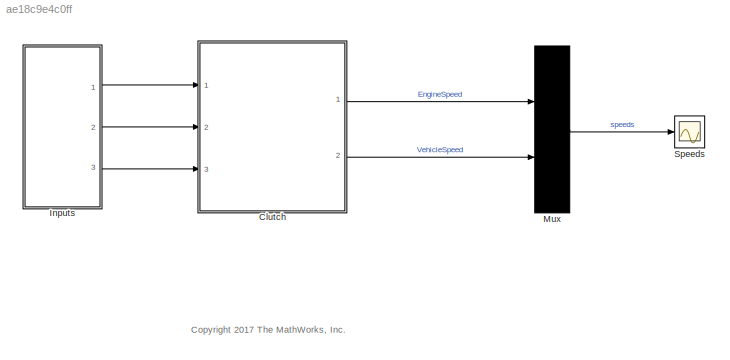
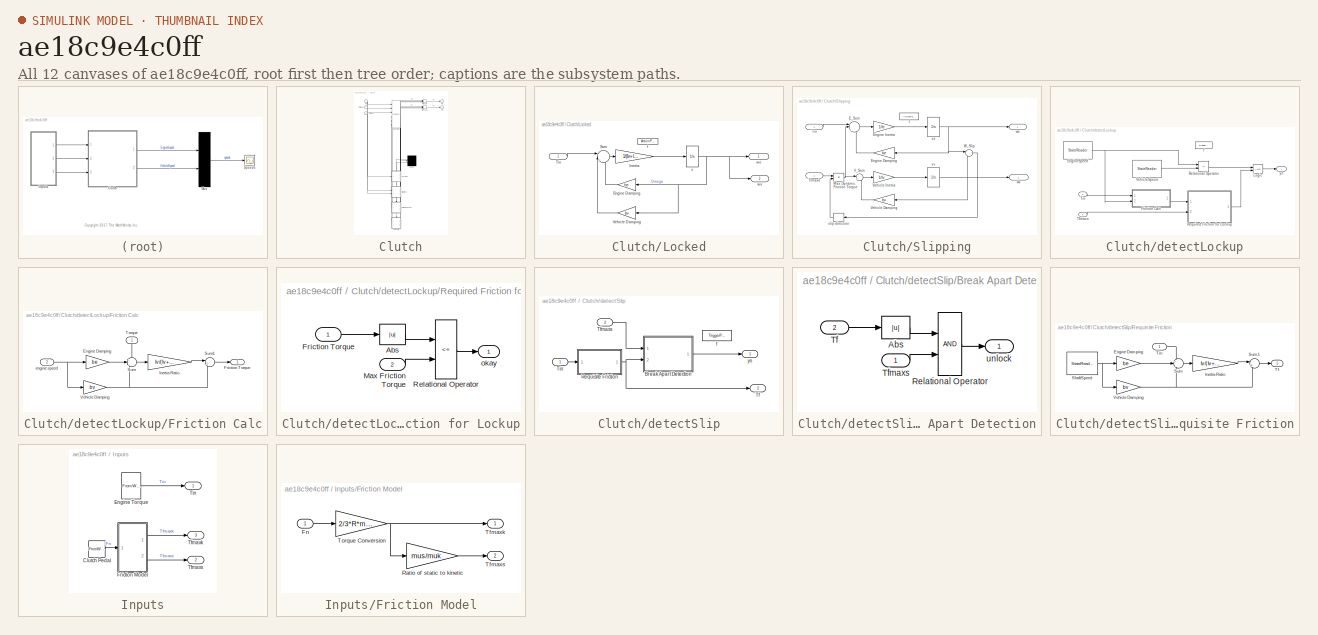
[diagram: thumbnail index - all 12 canvases of the model, root first then tree order]
MODEL slx_ae18c9e4c0ff
KIND model
CONFIG AbsTol = 1e-7
CONFIG EnableMultiTasking = off
CONFIG FixedStep = auto
CONFIG MaxStep = auto
CONFIG MinStep = auto
CONFIG RelTol = 1e-6
CONFIG SampleTimeConstraint = Unconstrained
CONFIG Solver = ode45
CONFIG SolverName = ode45
CONFIG StartTime = 0.0
CONFIG StopTime = 10
WORKSPACE source: MATLAB code (in-file)
WORKSPACE code: load sldemo_clutchparam;
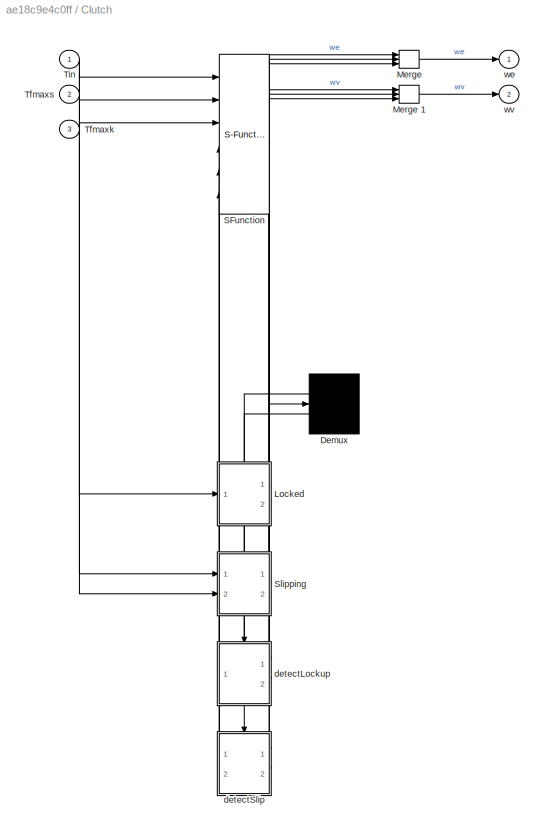
BLOCK [SubSystem] Clutch
  ErrorFcn = Stateflow.Translate.translate
  PermitHierarchicalResolution = ExplicitOnly
  Ports = [3, 2]
  RequestExecContextInheritance = off
  SFBlockType = Chart
  TreatAsAtomicUnit = on
  Variant = off
BLOCK [Demux] Clutch/ Demux 
  Outputs = 2
  Ports = [1, 2]
BLOCK [Merge] Clutch/ Merge 
  Inputs = 3
  Ports = [3, 1]
BLOCK [Merge] Clutch/ Merge 1
  Inputs = 3
  Ports = [3, 1]
BLOCK [S-Function] Clutch/ SFunction 
  EnableBusSupport = on
  FunctionName = sf_sfun
  PortCounts = [6 7]
  Ports = [6, 7]
  SFcnIsStateOwnerBlock = off
  SFunctionDeploymentMode = off
  Tag = Stateflow S-Function sf_clutch 2
BLOCK [SubSystem] Clutch/Locked
  Ports = [1, 2, 0, 0, 0, 0, 0, 1]
  PreDeleteFcn = Stateflow.SLINSF.SimulinkMan.removePreDeleteFcn
  RequestExecContextInheritance = off
  UndoDeleteFcn = Stateflow.SLINSF.SimulinkMan.restorePreDeleteFcn
  Variant = off
BLOCK [Gain] Clutch/Locked/Engine Damping
  Gain = be
BLOCK [Gain] Clutch/Locked/Inertia
  Gain = 1/(Iv+Ie)
BLOCK [Sum] Clutch/Locked/Sum
  IconShape = round
  Inputs = ||+--
  Ports = [3, 1]
BLOCK [Inport] Clutch/Locked/Tin
  IconDisplay = Port number
BLOCK [Gain] Clutch/Locked/Vehicle Damping
  Gain = bv
BLOCK [ActionPort] Clutch/Locked/f
  CopyFcn = Stateflow.SLINSF.SimulinkMan.removeBlockPreDeleteFcn
  PreDeleteFcn = Stateflow.SLINSF.SimulinkMan.unsafePredeleteFcn
BLOCK [Outport] Clutch/Locked/we
  IconDisplay = Port number
BLOCK [Outport] Clutch/Locked/wv
  IconDisplay = Port number
  Port = 2
BLOCK [Integrator] Clutch/Locked/x
  ContinuousStateAttributes = 'w'
  Ports = [1, 1]
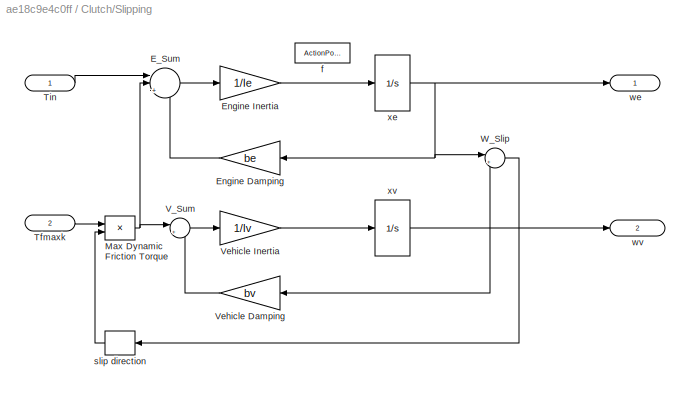
BLOCK [SubSystem] Clutch/Slipping
  Ports = [2, 2, 0, 0, 0, 0, 0, 1]
  PreDeleteFcn = Stateflow.SLINSF.SimulinkMan.removePreDeleteFcn
  RequestExecContextInheritance = off
  UndoDeleteFcn = Stateflow.SLINSF.SimulinkMan.restorePreDeleteFcn
  Variant = off
BLOCK [Sum] Clutch/Slipping/E_Sum
  IconShape = round
  Inputs = ||+--
  Ports = [3, 1]
BLOCK [Gain] Clutch/Slipping/Engine Damping
  Gain = be
BLOCK [Gain] Clutch/Slipping/Engine Inertia
  Gain = 1/Ie
BLOCK [Product] Clutch/Slipping/Max Dynamic Friction Torque
  Ports = [2, 1]
BLOCK [Inport] Clutch/Slipping/Tfmaxk
  IconDisplay = Port number
  Port = 2
BLOCK [Inport] Clutch/Slipping/Tin
  IconDisplay = Port number
BLOCK [Sum] Clutch/Slipping/V_Sum
  IconShape = round
  Inputs = |+-
  Ports = [2, 1]
BLOCK [Gain] Clutch/Slipping/Vehicle Damping
  Gain = bv
BLOCK [Gain] Clutch/Slipping/Vehicle Inertia
  Gain = 1/Iv
BLOCK [Sum] Clutch/Slipping/W_Slip
  IconShape = round
  Inputs = |+-
  Ports = [2, 1]
BLOCK [ActionPort] Clutch/Slipping/f
  CopyFcn = Stateflow.SLINSF.SimulinkMan.removeBlockPreDeleteFcn
  PreDeleteFcn = Stateflow.SLINSF.SimulinkMan.unsafePredeleteFcn
BLOCK [Signum] Clutch/Slipping/slip direction
BLOCK [Outport] Clutch/Slipping/we
  IconDisplay = Port number
BLOCK [Outport] Clutch/Slipping/wv
  IconDisplay = Port number
  Port = 2
BLOCK [Integrator] Clutch/Slipping/xe
  ContinuousStateAttributes = 'we'
  Ports = [1, 1]
BLOCK [Integrator] Clutch/Slipping/xv
  ContinuousStateAttributes = 'wv'
  Ports = [1, 1]
BLOCK [Inport] Clutch/Tfmaxk
  IconDisplay = Port number
  Port = 3
BLOCK [Inport] Clutch/Tfmaxs
  IconDisplay = Port number
  Port = 2
BLOCK [Inport] Clutch/Tin
  IconDisplay = Port number
BLOCK [SubSystem] Clutch/detectLockup
  Ports = [2, 1, 0, 1]
  PreDeleteFcn = Stateflow.SLINSF.SimulinkMan.removePreDeleteFcn
  RequestExecContextInheritance = off
  UndoDeleteFcn = Stateflow.SLINSF.SimulinkMan.restorePreDeleteFcn
  Variant = off
BLOCK [StateReader] Clutch/detectLockup/EngineSpeed
  StateOwnerBlock = ../../Slipping/xe
BLOCK [SubSystem] Clutch/detectLockup/Friction Calc
  Ports = [2, 1]
  RequestExecContextInheritance = off
  Variant = off
BLOCK [Gain] Clutch/detectLockup/Friction Calc/Engine Damping
  Gain = be
BLOCK [Outport] Clutch/detectLockup/Friction Calc/Friction Torque
  IconDisplay = Port number
  InitialOutput = 0
BLOCK [Gain] Clutch/detectLockup/Friction Calc/Inertia Ratio
  Gain = Iv/(Iv+Ie)
BLOCK [Sum] Clutch/detectLockup/Friction Calc/Sum
  IconShape = round
  Inputs = +--
  Ports = [3, 1]
BLOCK [Sum] Clutch/detectLockup/Friction Calc/Sum1
  IconShape = round
  Inputs = |++
  Ports = [2, 1]
BLOCK [Inport] Clutch/detectLockup/Friction Calc/Torque
  IconDisplay = Port number
BLOCK [Gain] Clutch/detectLockup/Friction Calc/Vehicle Damping
  Gain = bv
BLOCK [Inport] Clutch/detectLockup/Friction Calc/engine speed
  IconDisplay = Port number
  Port = 2
BLOCK [Logic] Clutch/detectLockup/Logic
  AttributesFormatString = (%<Operator>)
  IconShape = distinctive
  OutDataTypeStr = boolean
  Ports = [2, 1]
BLOCK [RelationalOperator] Clutch/detectLockup/Relational Operator
  InputSameDT = off
  Operator = <=
  OutDataTypeStr = boolean
  Ports = [2, 1]
BLOCK [SubSystem] Clutch/detectLockup/Required Friction for Lockup
  Ports = [2, 1]
  RequestExecContextInheritance = off
  Variant = off
BLOCK [Abs] Clutch/detectLockup/Required Friction for Lockup/Abs
BLOCK [Inport] Clutch/detectLockup/Required Friction for Lockup/Friction Torque
  IconDisplay = Port number
BLOCK [Inport] Clutch/detectLockup/Required Friction for Lockup/Max Friction Torque
  IconDisplay = Port number
  Port = 2
BLOCK [RelationalOperator] Clutch/detectLockup/Required Friction for Lockup/Relational Operator
  Operator = <=
  OutDataTypeStr = boolean
  Ports = [2, 1]
BLOCK [Outport] Clutch/detectLockup/Required Friction for Lockup/okay
  IconDisplay = Port number
  InitialOutput = 0
BLOCK [Inport] Clutch/detectLockup/Tfmaxs
  IconDisplay = Port number
  Port = 2
BLOCK [Inport] Clutch/detectLockup/Tin
  IconDisplay = Port number
BLOCK [StateReader] Clutch/detectLockup/VehicleSpeed
  StateOwnerBlock = ../../Slipping/xv
BLOCK [TriggerPort] Clutch/detectLockup/f
  CopyFcn = Stateflow.SLINSF.SimulinkMan.removeBlockPreDeleteFcn
  Ports = []
  PreDeleteFcn = Stateflow.SLINSF.SimulinkMan.unsafePredeleteFcn
  StatesWhenEnabling = held
  TriggerType = function-call
  VariantControl = Variant
BLOCK [Outport] Clutch/detectLockup/yn
  IconDisplay = Port number
BLOCK [SubSystem] Clutch/detectSlip
  Ports = [2, 2, 0, 1]
  PreDeleteFcn = Stateflow.SLINSF.SimulinkMan.removePreDeleteFcn
  RequestExecContextInheritance = off
  UndoDeleteFcn = Stateflow.SLINSF.SimulinkMan.restorePreDeleteFcn
  Variant = off
BLOCK [SubSystem] Clutch/detectSlip/Break Apart Detection
  Ports = [2, 1]
  RequestExecContextInheritance = off
  Variant = off
BLOCK [Abs] Clutch/detectSlip/Break Apart Detection/Abs
BLOCK [RelationalOperator] Clutch/detectSlip/Break Apart Detection/Relational Operator
  OutDataTypeStr = boolean
  Ports = [2, 1]
BLOCK [Inport] Clutch/detectSlip/Break Apart Detection/Tf
  IconDisplay = Port number
  Port = 2
BLOCK [Inport] Clutch/detectSlip/Break Apart Detection/Tfmaxs
  IconDisplay = Port number
BLOCK [Outport] Clutch/detectSlip/Break Apart Detection/unlock
  IconDisplay = Port number
  InitialOutput = 0
BLOCK [SubSystem] Clutch/detectSlip/Requisite Friction
  Ports = [1, 1]
  RequestExecContextInheritance = off
  Variant = off
BLOCK [Gain] Clutch/detectSlip/Requisite Friction/Engine Damping
  Gain = be
BLOCK [Gain] Clutch/detectSlip/Requisite Friction/Inertia Ratio
  Gain = Iv/(Iv+Ie)
BLOCK [StateReader] Clutch/detectSlip/Requisite Friction/ShaftSpeed
  StateOwnerBlock = ../../../Locked/x
BLOCK [Sum] Clutch/detectSlip/Requisite Friction/Sum
  IconShape = round
  Inputs = +--
  Ports = [3, 1]
BLOCK [Sum] Clutch/detectSlip/Requisite Friction/Sum1
  IconShape = round
  Inputs = |++
  Ports = [2, 1]
BLOCK [Outport] Clutch/detectSlip/Requisite Friction/Tf
  IconDisplay = Port number
  InitialOutput = 0
BLOCK [Inport] Clutch/detectSlip/Requisite Friction/Tin
  IconDisplay = Port number
BLOCK [Gain] Clutch/detectSlip/Requisite Friction/Vehicle Damping
  Gain = bv
BLOCK [Outport] Clutch/detectSlip/Tf
  IconDisplay = Port number
  Port = 2
BLOCK [Inport] Clutch/detectSlip/Tfmaxs
  IconDisplay = Port number
  Port = 2
BLOCK [Inport] Clutch/detectSlip/Tin
  IconDisplay = Port number
BLOCK [TriggerPort] Clutch/detectSlip/f
  CopyFcn = Stateflow.SLINSF.SimulinkMan.removeBlockPreDeleteFcn
  Ports = []
  PreDeleteFcn = Stateflow.SLINSF.SimulinkMan.unsafePredeleteFcn
  StatesWhenEnabling = held
  TriggerType = function-call
  VariantControl = Variant
BLOCK [Outport] Clutch/detectSlip/yn
  IconDisplay = Port number
BLOCK [Outport] Clutch/we
  IconDisplay = Port number
BLOCK [Outport] Clutch/wv
  IconDisplay = Port number
  Port = 2
BLOCK [SubSystem] Inputs
  Ports = [0, 3]
  RequestExecContextInheritance = off
  Variant = off
BLOCK [FromWorkspace] Inputs/Clutch Pedal
  SampleTime = 0
  VariableName = Fn
BLOCK [FromWorkspace] Inputs/Engine Torque
  SampleTime = 0
  VariableName = Tin
BLOCK [SubSystem] Inputs/Friction Model
  Ports = [1, 2]
  RequestExecContextInheritance = off
  Variant = off
BLOCK [Inport] Inputs/Friction Model/Fn
  IconDisplay = Port number
BLOCK [Gain] Inputs/Friction Model/Ratio of static to kinetic
  Gain = mus/muk
BLOCK [Outport] Inputs/Friction Model/Tfmaxk
  IconDisplay = Port number
  InitialOutput = 0
BLOCK [Outport] Inputs/Friction Model/Tfmaxs
  IconDisplay = Port number
  InitialOutput = 0
  Port = 2
BLOCK [Gain] Inputs/Friction Model/Torque Conversion
  Gain = 2/3*R*muk
BLOCK [Outport] Inputs/Tfmaxk
  IconDisplay = Port number
  Port = 3
BLOCK [Outport] Inputs/Tfmaxs
  IconDisplay = Port number
  Port = 2
BLOCK [Outport] Inputs/Tin
  IconDisplay = Port number
BLOCK [Mux] Mux
  Inputs = 2
  Ports = [2, 1]
BLOCK [Scope] Speeds
  NumInputPorts = 1
  Ports = [1]
  ScopeSpecificationString = Simulink.scopes.TimeScopeBlockCfg('CurrentConfiguration', extmgr.ConfigurationSet(extmgr.Configuration('Core','General UI',true,'MessageLogAutoOpenMode','for warn/fail messages','ShowCloseAll',true,'ShowBringAllForward',true),extmgr.Configuration('Core','Source UI',true,'PlaybackToolbar',true),extmgr.Configuration('Sources','WiredSimulink',true,'PointsPerSignal',50000,'DataLoggingDecimation','1','...<+1981ch>
ANNOTATION (root): <copyright redacted>
LINE Clutch:1 -> Mux:1
LINE Clutch:2 -> Mux:2
LINE Inputs/Clutch Pedal:1 -> Inputs/Friction Model:1
LINE Inputs/Engine Torque:1 -> Inputs/Tin:1
LINE Inputs/Friction Model/Fn:1 -> Inputs/Friction Model/Torque Conversion:1
LINE Inputs/Friction Model/Ratio of static to kinetic:1 -> Inputs/Friction Model/Tfmaxs:1
NET Inputs/Friction Model/Torque Conversion:1 -> Inputs/Friction Model/Ratio of static to kinetic:1, Inputs/Friction Model/Tfmaxk:1
LINE Inputs/Friction Model:1 -> Inputs/Tfmaxk:1
LINE Inputs/Friction Model:2 -> Inputs/Tfmaxs:1
LINE Inputs:1 -> Clutch:1
LINE Inputs:2 -> Clutch:2
LINE Inputs:3 -> Clutch:3
LINE Mux:1 -> Speeds:1
note: NET lines group one-source signal fan-out (src -> all destinations, sorted); 1:1 wires keep LINE
CHART Clutch states=4 transitions=3
  STATE_LABEL 'Slipping'
  STATE_LABEL '[yn,Tf] = detectSlip(Tin,Tfmaxs)'
  STATE_LABEL 'yn = detectLockup(Tin,Tfmaxs)'
  STATE_LABEL 'Locked'
